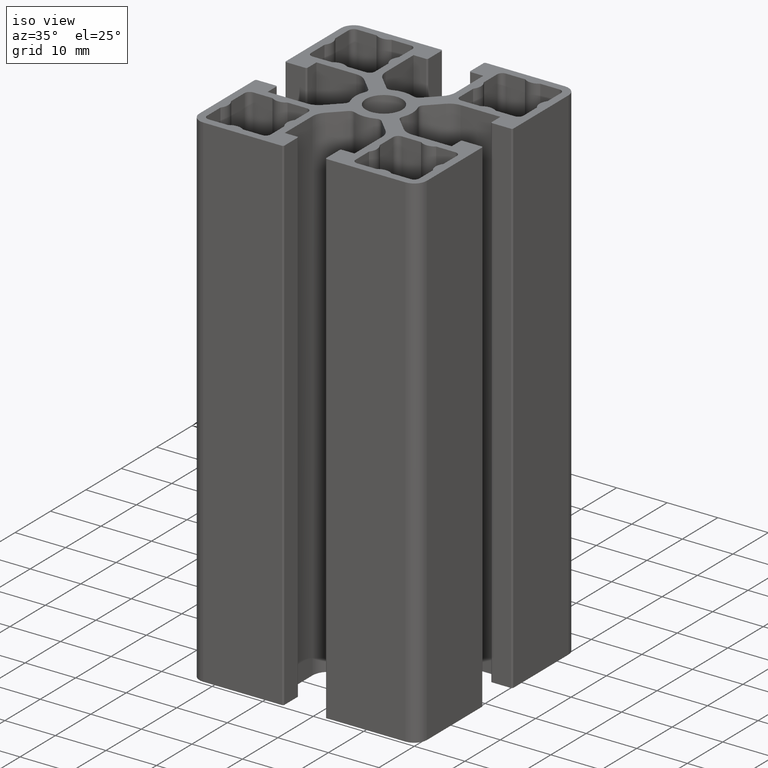
[diagram: clean part render]
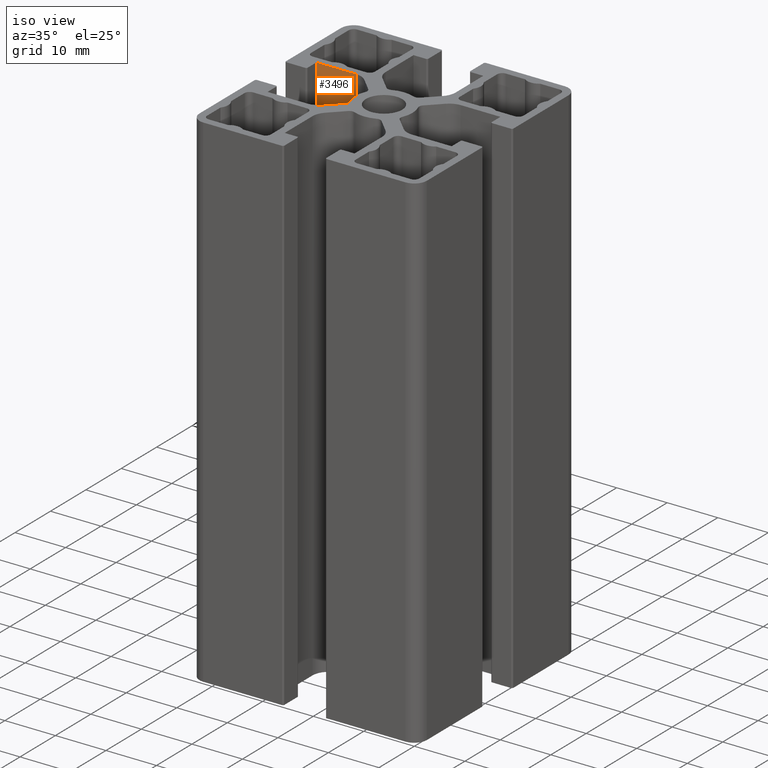
[diagram: same view with one face highlighted and labeled with its STEP entity id]
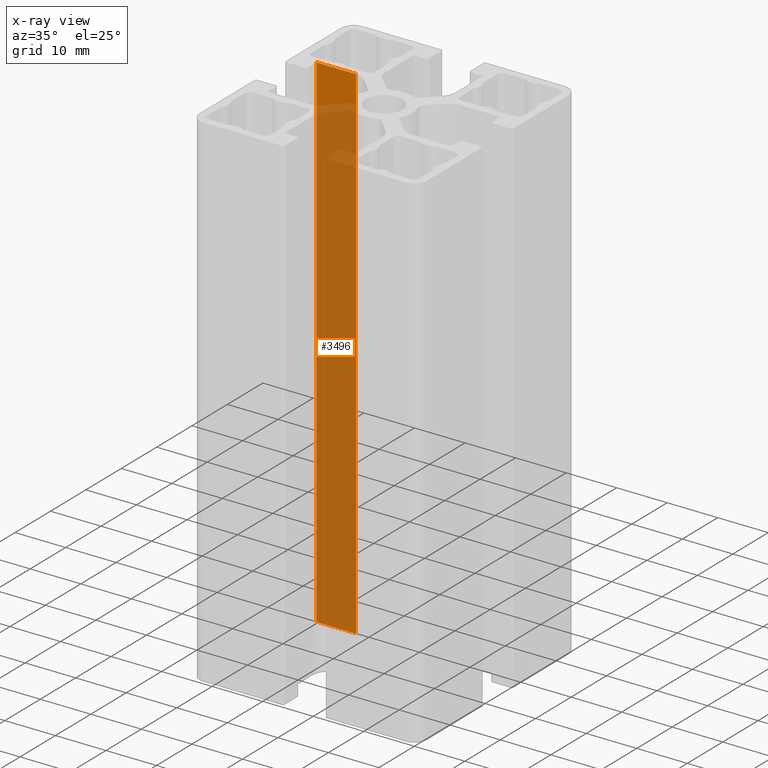
[diagram: x-ray of the same camera — body ghosted, the highlighted face saturated]
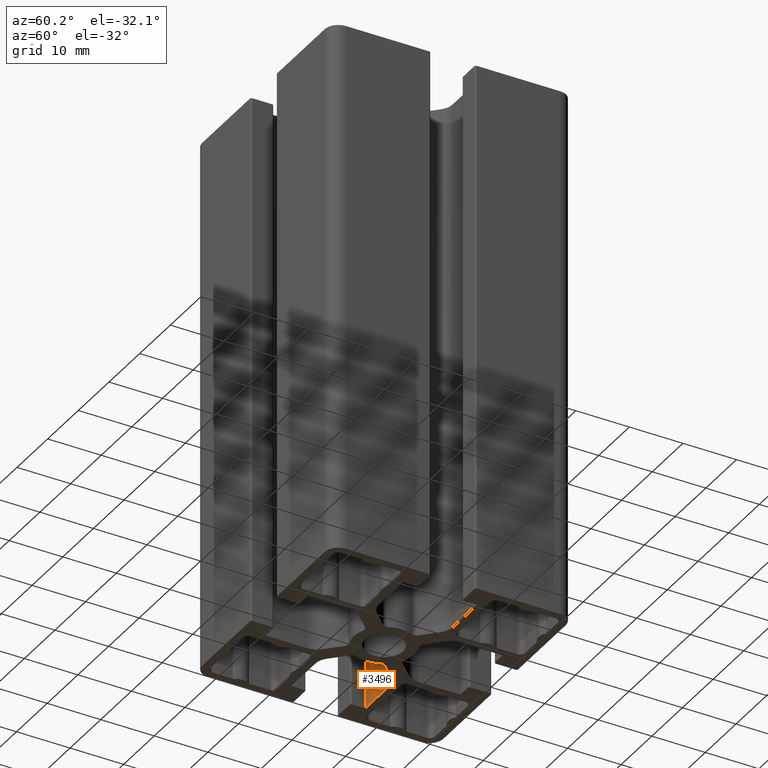
[diagram: same view with one face highlighted and labeled with its STEP entity id]
A machine part, iso view. The second image highlights one B-rep face of the part: STEP entity #3496.
The next image is the same camera in x-ray: the body ghosted, the highlighted face saturated — about 94% of this face is hidden behind the body in this view.
A second angle (auxiliary view) of the same face is appended — the face is thin or edge-on in the first view.
In plain terms, the highlighted planar face has unit normal (0, 1, 0).
Its self-contained STEP definition (entity closure, byte-faithful):
#469=FACE_OUTER_BOUND('',#649,.T.);
#649=EDGE_LOOP('',(#2744,#2745,#2746,#2747));
#940=LINE('',#5817,#1260);
#941=LINE('',#5820,#1261);
#942=LINE('',#5822,#1262);
#943=LINE('',#5823,#1263);
#1260=VECTOR('',#4738,100.);
#1261=VECTOR('',#4741,7.85319625684647);
#1262=VECTOR('',#4742,7.85319625684647);
#1263=VECTOR('',#4743,100.);
#1612=VERTEX_POINT('',#5813);
#1613=VERTEX_POINT('',#5815);
#1614=VERTEX_POINT('',#5819);
#1615=VERTEX_POINT('',#5821);
#2090=EDGE_CURVE('',#1613,#1612,#940,.T.);
#2091=EDGE_CURVE('',#1612,#1614,#941,.T.);
#2092=EDGE_CURVE('',#1615,#1613,#942,.T.);
#2093=EDGE_CURVE('',#1615,#1614,#943,.T.);
#2744=ORIENTED_EDGE('',*,*,#2091,.F.);
#2745=ORIENTED_EDGE('',*,*,#2090,.F.);
#2746=ORIENTED_EDGE('',*,*,#2092,.F.);
#2747=ORIENTED_EDGE('',*,*,#2093,.T.);
#3344=PLANE('',#3833);
#3496=ADVANCED_FACE('',(#469),#3344,.F.);
#3833=AXIS2_PLACEMENT_3D('',#5818,#4739,#4740);
#4738=DIRECTION('',(0.,0.,1.));
#4739=DIRECTION('center_axis',(2.82744245352905E-16,1.,0.));
#4740=DIRECTION('ref_axis',(-1.,2.66453525910038E-16,0.));
#4741=DIRECTION('',(1.,-2.82744245352905E-16,0.));
#4742=DIRECTION('',(-1.,2.82744245352905E-16,0.));
#4743=DIRECTION('',(0.,0.,1.));
#5813=CARTESIAN_POINT('',(-18.2,6.90000000000001,100.));
#5815=CARTESIAN_POINT('',(-18.2,6.90000000000001,0.));
#5817=CARTESIAN_POINT('',(-18.2,6.90000000000001,0.));
#5818=CARTESIAN_POINT('Origin',(-10.3468037431535,6.9,0.));
#5819=CARTESIAN_POINT('',(-10.3468037431535,6.9,100.));
#5820=CARTESIAN_POINT('',(-5.17340187157677,6.9,100.));
#5821=CARTESIAN_POINT('',(-10.3468037431535,6.9,0.));
#5822=CARTESIAN_POINT('',(-5.17340187157677,6.9,0.));
#5823=CARTESIAN_POINT('',(-10.3468037431535,6.9,0.));